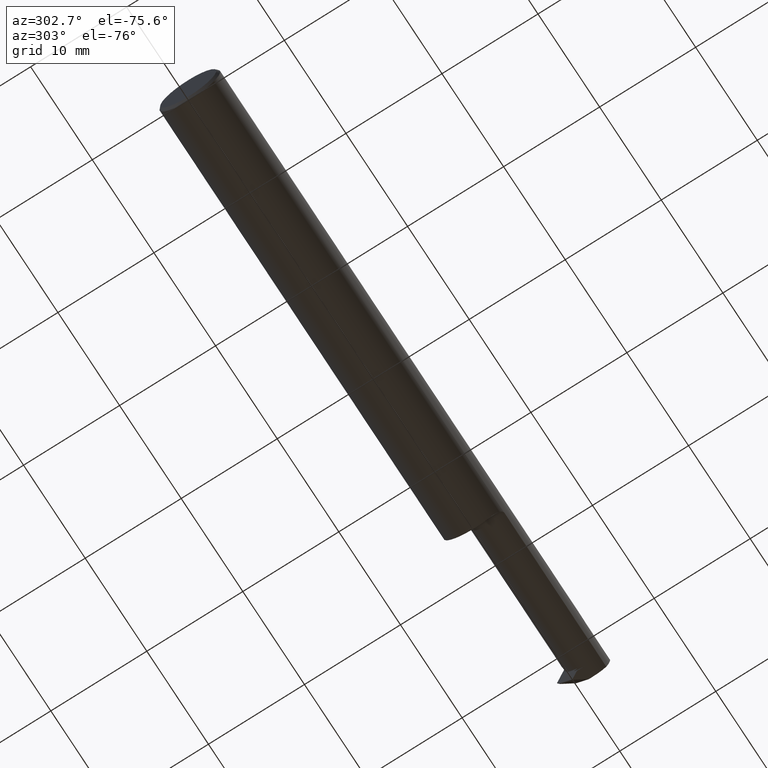
[diagram: clean part render]
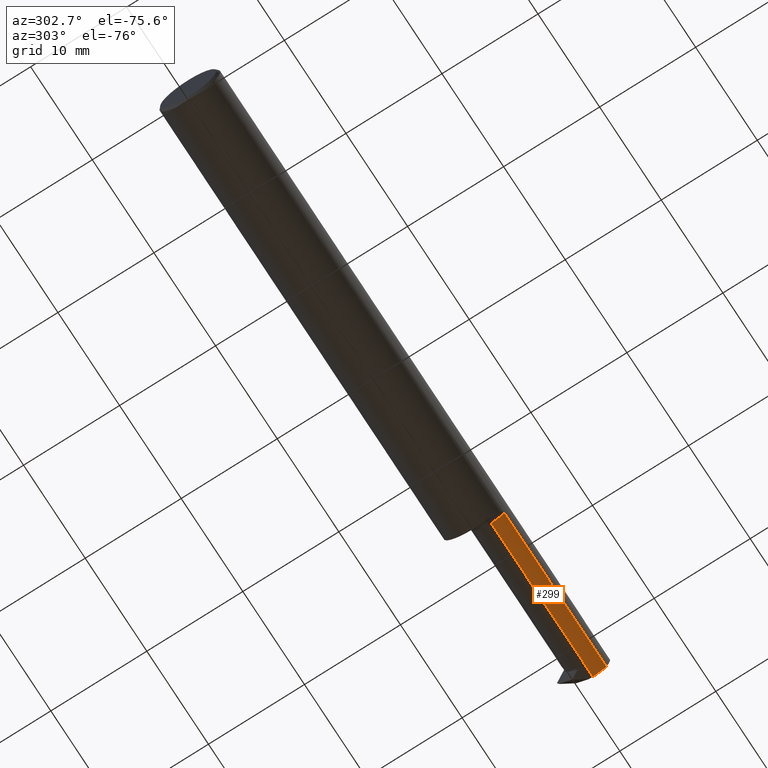
[diagram: same view with one face highlighted and labeled with its STEP entity id]
A machine part, auxiliary view. The second image highlights one B-rep face of the part: STEP entity #299.
In plain terms, the highlighted cylindrical surface (edge-blend (fillet) strip) has radius 2.0828 mm, axis along (-1, -0, -0).
Its self-contained STEP definition (entity closure, byte-faithful):
#22 = DIRECTION ( 'NONE',  ( 0.000000000000000000, 0.000000000000000000, 1.000000000000000000 ) ) ;
#24 = AXIS2_PLACEMENT_3D ( 'NONE', #581, #446, #571 ) ;
#66 = CARTESIAN_POINT ( 'NONE',  ( 1.850000000000000311, -0.05385000000000006448, 0.000000000000000000 ) ) ;
#89 = CARTESIAN_POINT ( 'NONE',  ( 1.825000000000000400, -0.05385000000000006448, 0.000000000000000000 ) ) ;
#93 = DIRECTION ( 'NONE',  ( -1.000000000000000000, -0.000000000000000000, -0.000000000000000000 ) ) ;
#107 = AXIS2_PLACEMENT_3D ( 'NONE', #89, #435, #119 ) ;
#119 = DIRECTION ( 'NONE',  ( 0.000000000000000000, 0.000000000000000000, 1.000000000000000000 ) ) ;
#156 = ORIENTED_EDGE ( 'NONE', *, *, #878, .F. ) ;
#166 = VECTOR ( 'NONE', #533, 39.37007874015748143 ) ;
#180 = CARTESIAN_POINT ( 'NONE',  ( 2.144015190534282578, -0.1092232590529246400, -0.06047976671464362630 ) ) ;
#229 = EDGE_CURVE ( 'NONE', #601, #714, #536, .T. ) ;
#245 = DIRECTION ( 'NONE',  ( -1.000000000000000000, -0.000000000000000000, -0.000000000000000000 ) ) ;
#266 = CARTESIAN_POINT ( 'NONE',  ( 2.638030381068564800, -0.05385000000000006448, -0.08200000000000007283 ) ) ;
#274 = AXIS2_PLACEMENT_3D ( 'NONE', #66, #865, #22 ) ;
#294 = EDGE_CURVE ( 'NONE', #601, #517, #881, .T. ) ;
#299 = ADVANCED_FACE ( 'NONE', ( #793 ), #516, .T. ) ;
#312 = CARTESIAN_POINT ( 'NONE',  ( 2.500000000000000000, -0.05385000000000006448, -0.08200000000000007283 ) ) ;
#388 = CARTESIAN_POINT ( 'NONE',  ( 2.453558178717972993, -0.05385000000000006448, -0.08200000000000007283 ) ) ;
#396 = VECTOR ( 'NONE', #93, 39.37007874015748143 ) ;
#434 = LINE ( 'NONE', #719, #396 ) ;
#435 = DIRECTION ( 'NONE',  ( -1.000000000000000000, -0.000000000000000000, -0.000000000000000000 ) ) ;
#446 = DIRECTION ( 'NONE',  ( 1.000000000000000000, 0.000000000000000000, 0.000000000000000000 ) ) ;
#462 = VERTEX_POINT ( 'NONE', #711 ) ;
#493 = CARTESIAN_POINT ( 'NONE',  ( 1.850000000000000311, -0.1092232590529246677, -0.06047976671464359855 ) ) ;
#516 = CYLINDRICAL_SURFACE ( 'NONE', #107, 0.08200000000000005895 ) ;
#517 = VERTEX_POINT ( 'NONE', #493 ) ;
#533 = DIRECTION ( 'NONE',  ( -1.000000000000000000, -0.000000000000000000, -0.000000000000000000 ) ) ;
#536 = CIRCLE ( 'NONE', #24, 0.08200000000000007283 ) ;
#571 = DIRECTION ( 'NONE',  ( 0.000000000000000000, 1.769871032480656849E-15, 1.000000000000000000 ) ) ;
#581 = CARTESIAN_POINT ( 'NONE',  ( 2.500000000000000000, -0.05385000000000006448, 0.000000000000000000 ) ) ;
#601 = VERTEX_POINT ( 'NONE', #852 ) ;
#606 = ORIENTED_EDGE ( 'NONE', *, *, #294, .T. ) ;
#607 = LINE ( 'NONE', #266, #166 ) ;
#626 = EDGE_CURVE ( 'NONE', #462, #517, #891, .T. ) ;
#634 = ORIENTED_EDGE ( 'NONE', *, *, #744, .F. ) ;
#675 = EDGE_LOOP ( 'NONE', ( #634, #156, #806, #606, #702 ) ) ;
#702 = ORIENTED_EDGE ( 'NONE', *, *, #626, .F. ) ;
#711 = CARTESIAN_POINT ( 'NONE',  ( 1.850000000000000311, -0.05385000000000005060, -0.08200000000000005895 ) ) ;
#714 = VERTEX_POINT ( 'NONE', #312 ) ;
#719 = CARTESIAN_POINT ( 'NONE',  ( 1.825000000000000400, -0.05385000000000005060, -0.08200000000000005895 ) ) ;
#735 = VECTOR ( 'NONE', #245, 39.37007874015748143 ) ;
#744 = EDGE_CURVE ( 'NONE', #896, #462, #434, .T. ) ;
#793 = FACE_OUTER_BOUND ( 'NONE', #675, .T. ) ;
#806 = ORIENTED_EDGE ( 'NONE', *, *, #229, .F. ) ;
#852 = CARTESIAN_POINT ( 'NONE',  ( 2.500000000000000000, -0.1092232590529245151, -0.06047976671464359161 ) ) ;
#865 = DIRECTION ( 'NONE',  ( -1.000000000000000000, -0.000000000000000000, -0.000000000000000000 ) ) ;
#878 = EDGE_CURVE ( 'NONE', #714, #896, #607, .T. ) ;
#881 = LINE ( 'NONE', #180, #735 ) ;
#891 = CIRCLE ( 'NONE', #274, 0.08200000000000005895 ) ;
#896 = VERTEX_POINT ( 'NONE', #388 ) ;